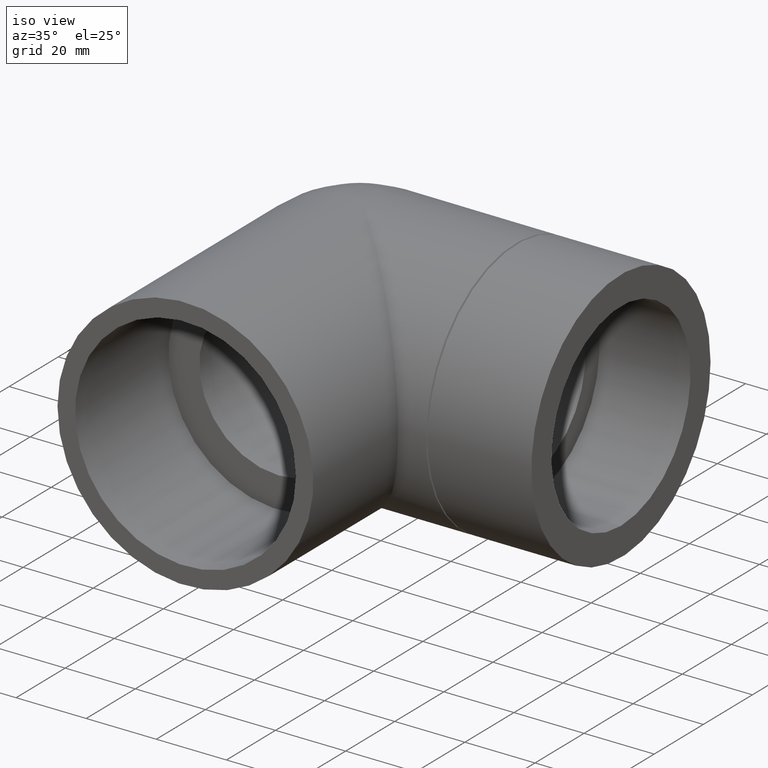
[diagram: clean part render]
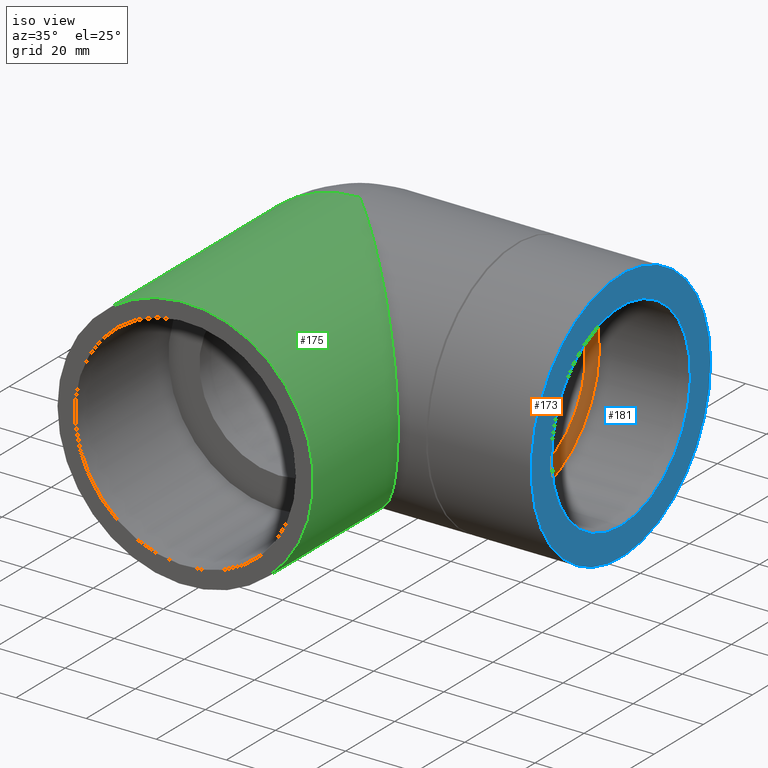
[diagram: same view with three faces highlighted in distinct colors, each labeled with its STEP entity id]
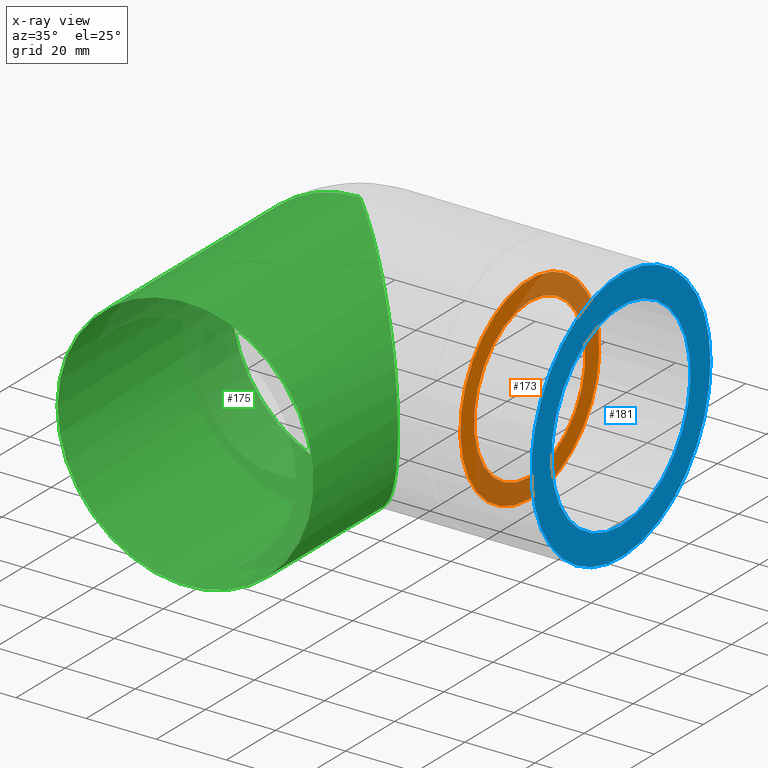
[diagram: x-ray of the same camera — body ghosted, the three highlighted faces saturated]
A machine part, iso view with three faces highlighted in distinct colors.
The next image is the same camera in x-ray (body ghosted, the three faces saturated) — at least one of them is partly hidden behind the body in this view.
Their STEP definitions:

[orange] entity #173 — the highlighted planar face has unit normal (1, 0, 0).
#20=PLANE('',#198);
#30=FACE_BOUND('',#66,.T.);
#44=FACE_OUTER_BOUND('',#65,.T.);
#65=EDGE_LOOP('',(#140));
#66=EDGE_LOOP('',(#141));
#85=CIRCLE('',#190,22.6624);
#88=CIRCLE('',#196,28.328);
#100=VERTEX_POINT('',#289);
#103=VERTEX_POINT('',#298);
#115=EDGE_CURVE('',#100,#100,#85,.T.);
#118=EDGE_CURVE('',#103,#103,#88,.T.);
#140=ORIENTED_EDGE('',*,*,#118,.F.);
#141=ORIENTED_EDGE('',*,*,#115,.T.);
#173=ADVANCED_FACE('',(#44,#30),#20,.T.);
#190=AXIS2_PLACEMENT_3D('',#290,#229,#230);
#196=AXIS2_PLACEMENT_3D('',#299,#241,#242);
#198=AXIS2_PLACEMENT_3D('',#302,#245,#246);
#229=DIRECTION('center_axis',(-1.,0.,0.));
#230=DIRECTION('ref_axis',(0.,0.,1.));
#241=DIRECTION('center_axis',(-1.,0.,0.));
#242=DIRECTION('ref_axis',(0.,0.,1.));
#245=DIRECTION('center_axis',(1.,0.,0.));
#246=DIRECTION('ref_axis',(0.,0.,-1.));
#289=CARTESIAN_POINT('',(48.5,2.7753435620997E-15,-22.6624));
#290=CARTESIAN_POINT('Origin',(48.5,0.,0.));
#298=CARTESIAN_POINT('',(48.5,3.46917945262462E-15,-28.328));
#299=CARTESIAN_POINT('Origin',(48.5,0.,0.));
#302=CARTESIAN_POINT('Origin',(48.5,0.,2.37932331760699E-15));

[blue] entity #181 — the highlighted planar face has unit normal (1, 0, 0).
#22=PLANE('',#214);
#37=FACE_BOUND('',#81,.T.);
#52=FACE_OUTER_BOUND('',#80,.T.);
#80=EDGE_LOOP('',(#158));
#81=EDGE_LOOP('',(#159));
#89=CIRCLE('',#197,28.328);
#96=CIRCLE('',#213,36.5);
#104=VERTEX_POINT('',#300);
#111=VERTEX_POINT('',#323);
#119=EDGE_CURVE('',#104,#104,#89,.T.);
#127=EDGE_CURVE('',#111,#111,#96,.T.);
#158=ORIENTED_EDGE('',*,*,#127,.T.);
#159=ORIENTED_EDGE('',*,*,#119,.T.);
#181=ADVANCED_FACE('',(#52,#37),#22,.T.);
#197=AXIS2_PLACEMENT_3D('',#301,#243,#244);
#213=AXIS2_PLACEMENT_3D('',#324,#275,#276);
#214=AXIS2_PLACEMENT_3D('',#325,#277,#278);
#243=DIRECTION('center_axis',(-1.,0.,0.));
#244=DIRECTION('ref_axis',(0.,0.,1.));
#275=DIRECTION('center_axis',(1.,0.,0.));
#276=DIRECTION('ref_axis',(0.,0.,-1.));
#277=DIRECTION('center_axis',(1.,0.,0.));
#278=DIRECTION('ref_axis',(0.,0.,-1.));
#300=CARTESIAN_POINT('',(74.5,3.46917945262462E-15,-28.328));
#301=CARTESIAN_POINT('Origin',(74.5,0.,0.));
#323=CARTESIAN_POINT('',(74.5,36.5,0.));
#324=CARTESIAN_POINT('Origin',(74.5,0.,0.));
#325=CARTESIAN_POINT('Origin',(74.5,0.,0.));

[green] entity #175 — the highlighted cylindrical surface (bore or boss wall) has radius 36.5 mm, axis along (-0, 1, 0).
#17=ELLIPSE('',#204,51.618795026618,36.5);
#31=FACE_BOUND('',#69,.T.);
#46=FACE_OUTER_BOUND('',#68,.T.);
#68=EDGE_LOOP('',(#144));
#69=EDGE_LOOP('',(#145,#146));
#91=CIRCLE('',#201,36.5);
#92=CIRCLE('',#203,36.5);
#105=VERTEX_POINT('',#304);
#106=VERTEX_POINT('',#305);
#107=VERTEX_POINT('',#309);
#121=EDGE_CURVE('',#105,#106,#91,.T.);
#122=EDGE_CURVE('',#107,#107,#92,.T.);
#123=EDGE_CURVE('',#106,#105,#17,.T.);
#144=ORIENTED_EDGE('',*,*,#122,.T.);
#145=ORIENTED_EDGE('',*,*,#123,.F.);
#146=ORIENTED_EDGE('',*,*,#121,.F.);
#164=CYLINDRICAL_SURFACE('',#202,36.5);
#175=ADVANCED_FACE('',(#46,#31),#164,.T.);
#201=AXIS2_PLACEMENT_3D('',#307,#251,#252);
#202=AXIS2_PLACEMENT_3D('',#308,#253,#254);
#203=AXIS2_PLACEMENT_3D('',#310,#255,#256);
#204=AXIS2_PLACEMENT_3D('',#311,#257,#258);
#251=DIRECTION('center_axis',(-1.22464679914735E-16,1.,0.));
#252=DIRECTION('ref_axis',(1.,1.22464679914735E-16,0.));
#253=DIRECTION('center_axis',(-1.22464679914735E-16,1.,0.));
#254=DIRECTION('ref_axis',(-1.,0.,0.));
#255=DIRECTION('center_axis',(-1.22464679914735E-16,1.,0.));
#256=DIRECTION('ref_axis',(1.,1.22464679914735E-16,0.));
#257=DIRECTION('center_axis',(0.707106781186548,0.707106781186548,0.));
#258=DIRECTION('ref_axis',(-0.707106781186547,0.707106781186548,0.));
#304=CARTESIAN_POINT('',(0.,-2.73706160335789E-31,-36.5));
#305=CARTESIAN_POINT('',(0.,-2.73706160335789E-31,36.5));
#307=CARTESIAN_POINT('Origin',(0.,0.,0.));
#308=CARTESIAN_POINT('Origin',(4.3474961369731E-15,-35.5,0.));
#309=CARTESIAN_POINT('',(-36.5,-71.,0.));
#310=CARTESIAN_POINT('Origin',(8.69499227394621E-15,-71.,0.));
#311=CARTESIAN_POINT('Origin',(0.,0.,0.));